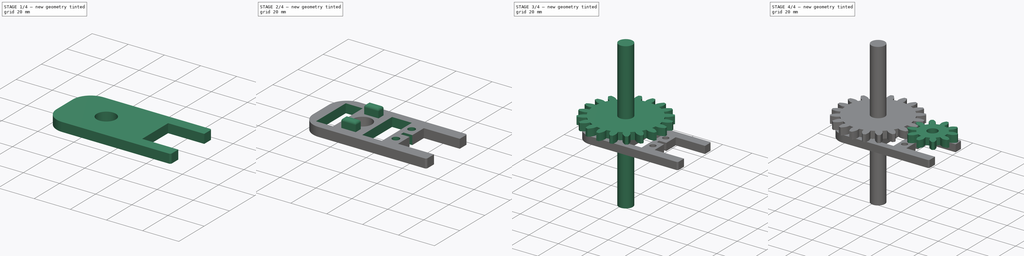
[diagram: build sequence overview — one tinted view per stage of 4, left to right]
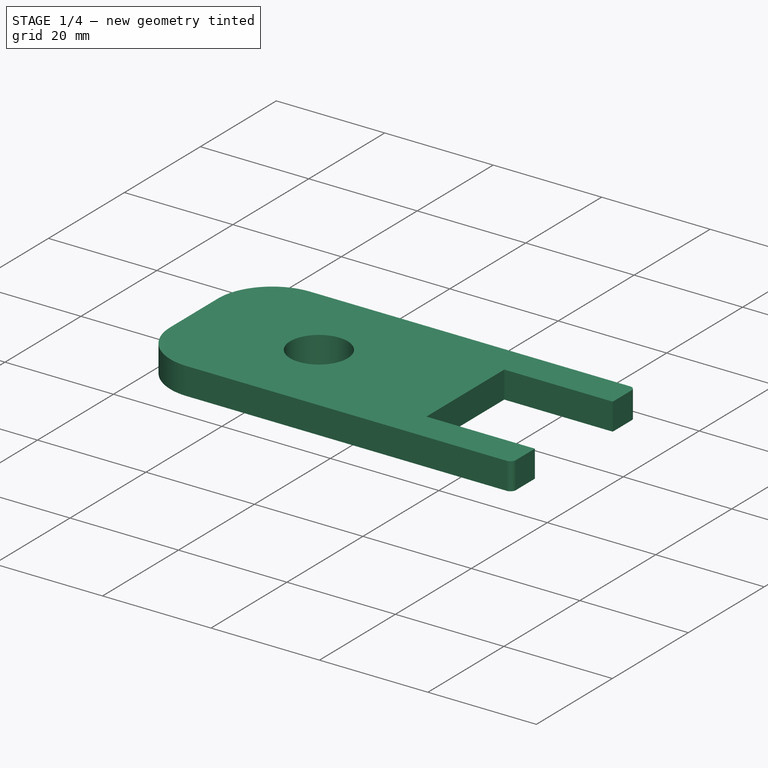
[diagram: stage 1 of 4 — iso view after this stage's code; geometry added in this stage tinted green]
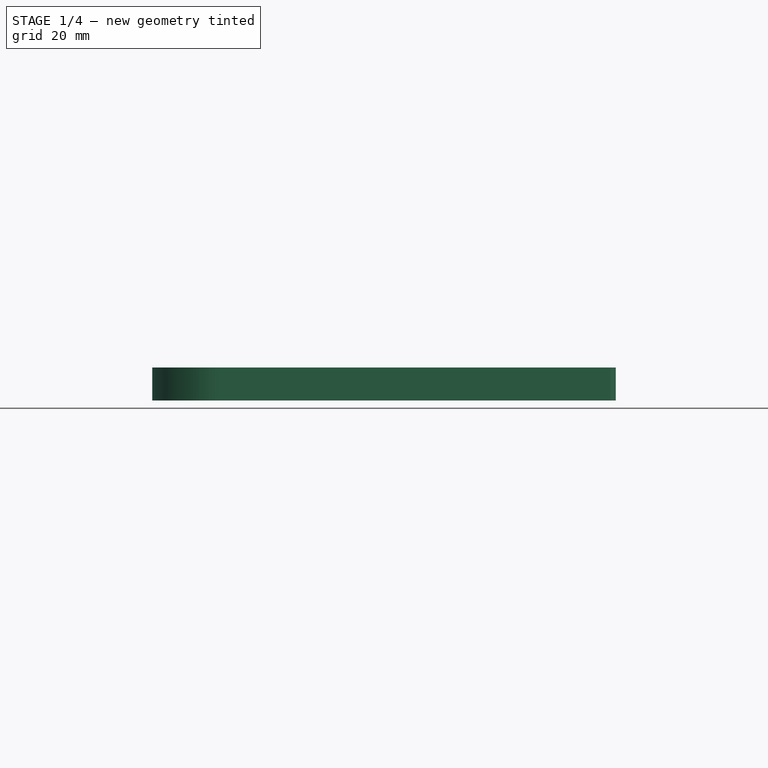
[diagram: stage 1 of 4 — front view after this stage's code; geometry added in this stage tinted green]
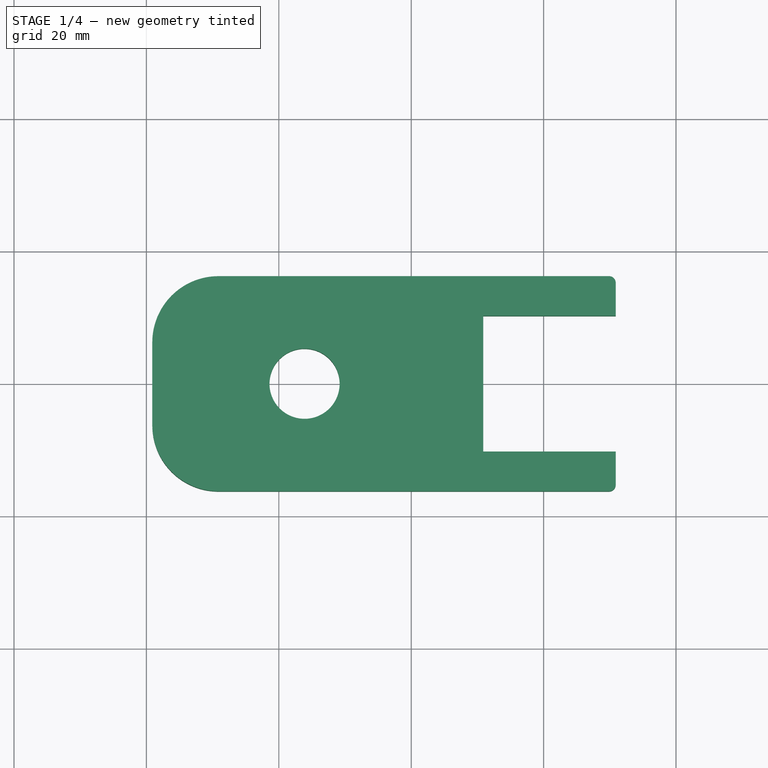
[diagram: stage 1 of 4 — top view after this stage's code; geometry added in this stage tinted green]
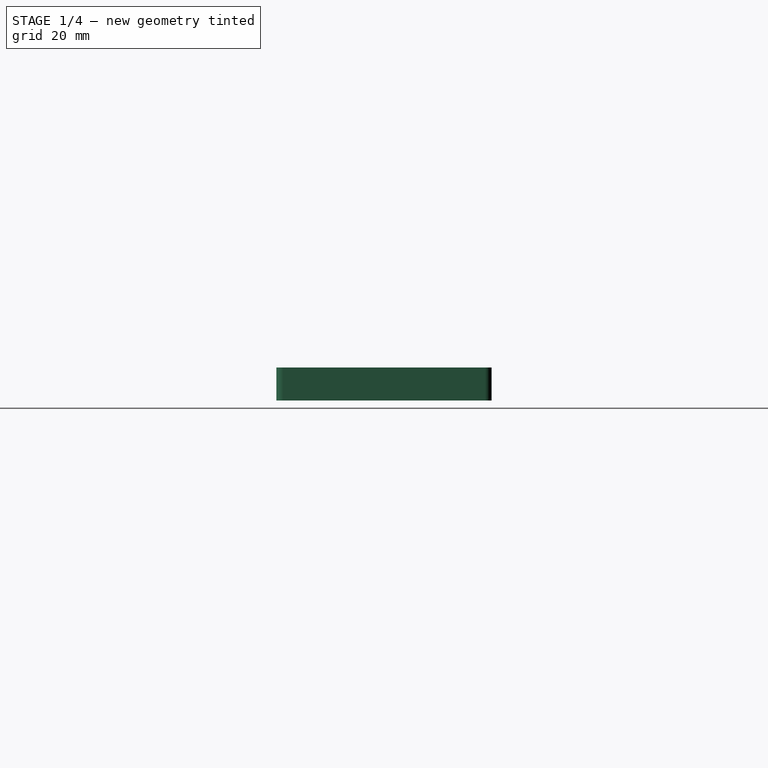
[diagram: stage 1 of 4 — right view after this stage's code; geometry added in this stage tinted green]
FCSTD DOCUMENT  (FreeCAD 0.17R13509 (Git))
Label: Gear_engranaje_ruedas
License: CreativeCommons Attribution-ShareAlike
LicenseURL: http://creativecommons.org/licenses/by-sa/4.0/
objects: Part::Cylinder×3, Sketcher::SketchObject×3, PartDesign::Fillet×3, Part::FeaturePython×2, Part::Cut×2, PartDesign::Pad×2, PartDesign::Pocket×1, PartDesign::Body×1
note: 20 computed .brp shape members not serialized (recipe doc carries the construction recipe); baked Part::Feature solids carry a one-line shape summary decoded from their .brp

FEATURE [Sketcher::SketchObject] Sketch
  MapMode = 5
  Support = -> [XY_Plane]
  sketch-geometry (9):
    g0: LineSegment StartX=30.888 StartY=10.25 StartZ=0 EndX=30.888 EndY=16.25 EndZ=0
    g1: LineSegment StartX=30.888 StartY=16.25 StartZ=0 EndX=-39.112 EndY=16.25 EndZ=0
    g2: LineSegment StartX=-39.112 StartY=16.25 StartZ=0 EndX=-39.112 EndY=-16.25 EndZ=0
    g3: LineSegment StartX=-39.112 StartY=-16.25 StartZ=0 EndX=30.888 EndY=-16.25 EndZ=0
    g4: LineSegment StartX=30.888 StartY=-16.25 StartZ=0 EndX=30.888 EndY=-10.25 EndZ=0
    g5: LineSegment StartX=30.888 StartY=-10.25 StartZ=0 EndX=10.888 EndY=-10.25 EndZ=0
    g6: LineSegment StartX=10.888 StartY=-10.25 StartZ=0 EndX=10.888 EndY=10.25 EndZ=0
    g7: LineSegment StartX=10.888 StartY=10.25 StartZ=0 EndX=30.888 EndY=10.25 EndZ=0
    g8: Circle CenterX=-16.112 CenterY=0 CenterZ=0 NormalX=0 NormalY=0 NormalZ=1 AngleXU=0 Radius=5.3
  constraints (26):
    c: Horizontal(g1)
    c: Coincident(g1,g2)
    c: Vertical(g2)
    c: Coincident(g2,g3)
    c: Horizontal(g3)
    c: Coincident(g3,g4)
    c: Vertical(g4)
    c: Coincident(g4,g5)
    c: Horizontal(g5)
    c: Coincident(g5,g6)
    c: Vertical(g6)
    c: Coincident(g6,g7)
    c: Coincident(g7,g0)
    c: Vertical(g0)
    c: Horizontal(g7)
    c: Equal(g7,g5)
    c: Coincident(g0,g1)
    c: Equal(g0,g4)
    c: DistanceY(g6,g6) = 20.5
    c: DistanceY(g0,g0) = 6
    c: DistanceX(g5,g5) = 20
    c: DistanceX(g1,g1) = 70
    c: DistanceX(g8,g6) = 27
    c: Radius(g8) = 5.3
    c: PointOnObject(g8,g-1)
    c: Symmetric(g1,g2,g-1)
FEATURE [PartDesign::Pad] Pad
  Length = 5
  Length2 = 100
  Profile = -> Sketch
  Refine = true
  Type = 0
FEATURE [PartDesign::Fillet] Fillet
  Base = -> Pad [Edge8,Edge5]
  BaseFeature = -> Pad
  Radius = 10
FEATURE [PartDesign::Fillet] Fillet001
  Base = -> Fillet [Edge31,Edge3]
  BaseFeature = -> Fillet
  Radius = 1
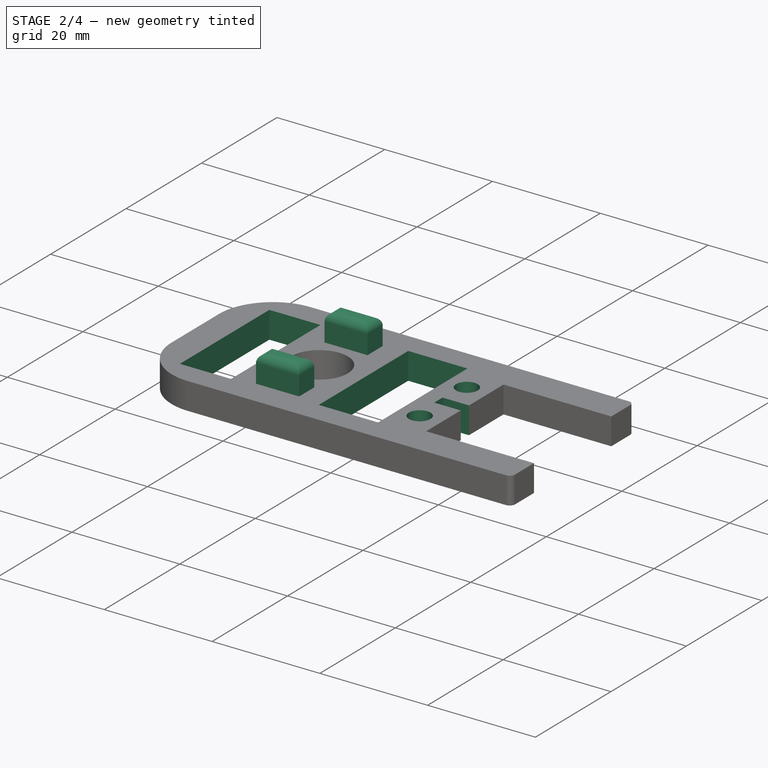
[diagram: stage 2 of 4 — iso view after this stage's code; geometry added in this stage tinted green]
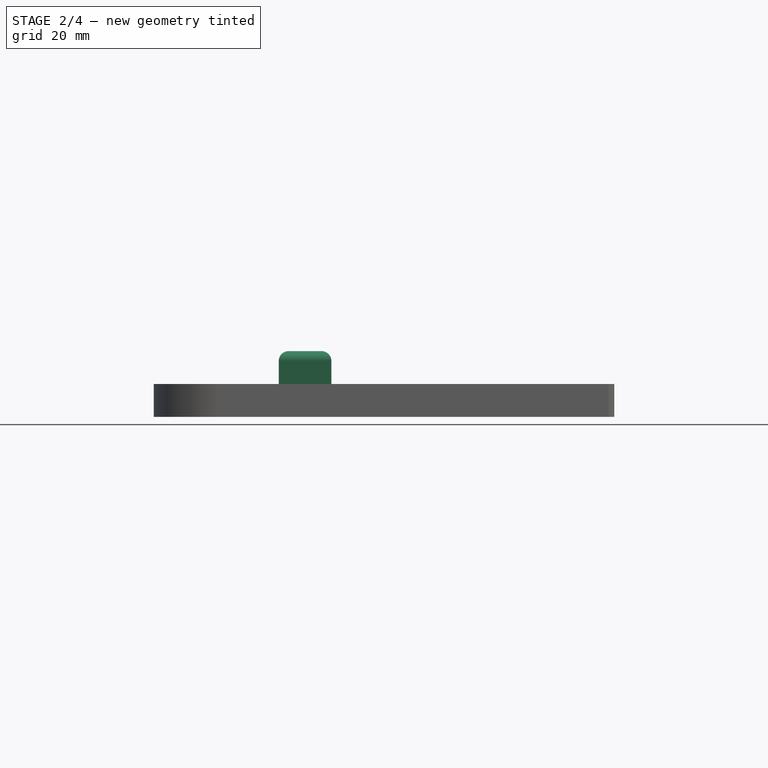
[diagram: stage 2 of 4 — front view after this stage's code; geometry added in this stage tinted green]
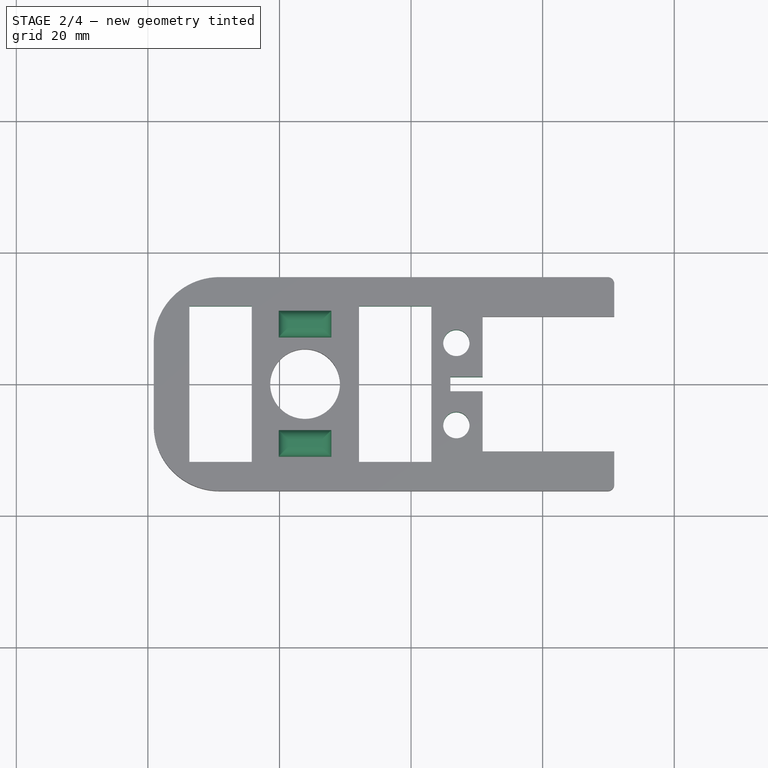
[diagram: stage 2 of 4 — top view after this stage's code; geometry added in this stage tinted green]
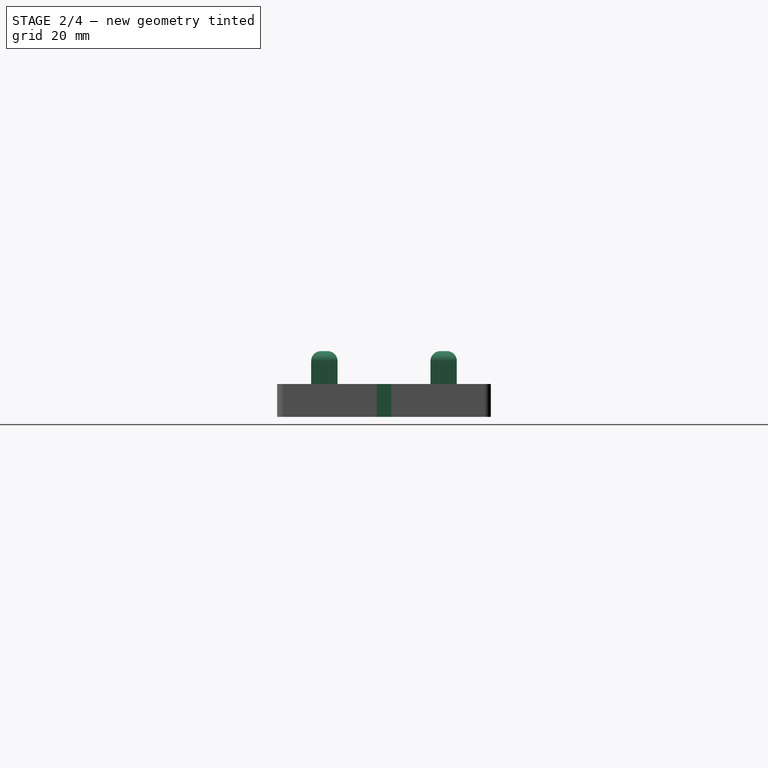
[diagram: stage 2 of 4 — right view after this stage's code; geometry added in this stage tinted green]
FEATURE [Sketcher::SketchObject] Sketch001
  ExternalGeometry = -> [Fillet001]
  MapMode = 5
  Placement = pos=(0,0,5) rot=(0,0,1;0rad)
  Support = -> [Fillet001]
  sketch-geometry (14):
    g0: LineSegment StartX=-33.6862 StartY=11.844 StartZ=0 EndX=-24.211 EndY=11.844 EndZ=0
    g1: LineSegment StartX=-24.211 StartY=11.844 StartZ=0 EndX=-24.211 EndY=-11.844 EndZ=0
    g2: LineSegment StartX=-24.211 StartY=-11.844 StartZ=0 EndX=-33.6862 EndY=-11.844 EndZ=0
    g3: LineSegment StartX=-33.6862 StartY=-11.844 StartZ=0 EndX=-33.6862 EndY=11.844 EndZ=0
    g4: LineSegment StartX=-7.92049 StartY=11.844 StartZ=0 EndX=3.07951 EndY=11.844 EndZ=0
    g5: LineSegment StartX=3.07951 StartY=11.844 StartZ=0 EndX=3.07951 EndY=-11.844 EndZ=0
    g6: LineSegment StartX=3.07951 StartY=-11.844 StartZ=0 EndX=-7.92049 EndY=-11.844 EndZ=0
    g7: LineSegment StartX=-7.92049 StartY=-11.844 StartZ=0 EndX=-7.92049 EndY=11.844 EndZ=0
    g8: Circle CenterX=6.88799 CenterY=6.25 CenterZ=0 NormalX=0 NormalY=0 NormalZ=1 AngleXU=0 Radius=2
    g9: Circle CenterX=6.88799 CenterY=-6.25 CenterZ=0 NormalX=0 NormalY=0 NormalZ=1 AngleXU=0 Radius=2
    g10: LineSegment StartX=10.888 StartY=1.1 StartZ=0 EndX=5.98468 EndY=1.1 EndZ=0
    g11: LineSegment StartX=5.98468 StartY=1.1 StartZ=0 EndX=5.98468 EndY=-1.1 EndZ=0
    g12: LineSegment StartX=5.98468 StartY=-1.1 StartZ=0 EndX=10.888 EndY=-1.1 EndZ=0
    g13: LineSegment StartX=10.888 StartY=-1.1 StartZ=0 EndX=10.888 EndY=1.1 EndZ=0
  constraints (36):
    c: Coincident(g0,g1)
    c: Coincident(g1,g2)
    c: Coincident(g2,g3)
    c: Coincident(g3,g0)
    c: Horizontal(g0)
    c: Horizontal(g2)
    c: Vertical(g1)
    c: Vertical(g3)
    c: Symmetric(g0,g2,g-1)
    c: Coincident(g4,g5)
    c: Coincident(g5,g6)
    c: Coincident(g6,g7)
    c: Coincident(g7,g4)
    c: Horizontal(g4)
    c: Horizontal(g6)
    c: Vertical(g5)
    c: Vertical(g7)
    c: Equal(g1,g7)
    c: Symmetric(g4,g6,g-1)
    c: DistanceX(g4,g4) = 11
    c: Equal(g9,g8)
    c: DistanceY(g8,g-3) = 10
    c: Symmetric(g8,g9,g-1)
    c: Radius(g8) = 2
    c: DistanceX(g8,g-5) = 4
    c: Coincident(g10,g11)
    c: Coincident(g11,g12)
    c: Coincident(g12,g13)
    c: Coincident(g13,g10)
    c: Horizontal(g10)
    c: Horizontal(g12)
    c: Vertical(g11)
    c: Vertical(g13)
    c: PointOnObject(g10,g-5)
    c: Symmetric(g10,g11,g-1)
    c: DistanceY(g12,g10) = 2.2
FEATURE [PartDesign::Pocket] Pocket
  BaseFeature = -> Fillet001
  Length = 5
  Length2 = 100
  Profile = -> Sketch001
  Refine = true
  Type = 0
FEATURE [Sketcher::SketchObject] Sketch002
  ExternalGeometry = -> [Pocket]
  MapMode = 5
  Placement = pos=(0,0,5) rot=(0,0,1;0rad)
  Support = -> [Pocket]
  sketch-geometry (8):
    g0: LineSegment StartX=-20.112 StartY=11.0671 StartZ=0 EndX=-12.112 EndY=11.0671 EndZ=0
    g1: LineSegment StartX=-12.112 StartY=11.0671 StartZ=0 EndX=-12.112 EndY=7.06714 EndZ=0
    g2: LineSegment StartX=-12.112 StartY=7.06714 StartZ=0 EndX=-20.112 EndY=7.06714 EndZ=0
    g3: LineSegment StartX=-20.112 StartY=7.06714 StartZ=0 EndX=-20.112 EndY=11.0671 EndZ=0
    g4: LineSegment StartX=-20.112 StartY=-7.06714 StartZ=0 EndX=-12.112 EndY=-7.06714 EndZ=0
    g5: LineSegment StartX=-12.112 StartY=-7.06714 StartZ=0 EndX=-12.112 EndY=-11.0671 EndZ=0
    g6: LineSegment StartX=-12.112 StartY=-11.0671 StartZ=0 EndX=-20.112 EndY=-11.0671 EndZ=0
    g7: LineSegment StartX=-20.112 StartY=-11.0671 StartZ=0 EndX=-20.112 EndY=-7.06714 EndZ=0
  constraints (22):
    c: Coincident(g0,g1)
    c: Coincident(g1,g2)
    c: Coincident(g2,g3)
    c: Coincident(g3,g0)
    c: Horizontal(g0)
    c: Horizontal(g2)
    c: Vertical(g1)
    c: Vertical(g3)
    c: Coincident(g4,g5)
    c: Coincident(g5,g6)
    c: Coincident(g6,g7)
    c: Coincident(g7,g4)
    c: Horizontal(g4)
    c: Horizontal(g6)
    c: Vertical(g5)
    c: Vertical(g7)
    c: Symmetric(g2,g4,g-1)
    c: Equal(g2,g4)
    c: Equal(g1,g5)
    c: Symmetric(g5,g0,g-3)
    c: DistanceY(g1,g1) = 4
    c: DistanceX(g0,g0) = 8
FEATURE [PartDesign::Pad] Pad001
  BaseFeature = -> Pocket
  Length = 5
  Length2 = 100
  Profile = -> Sketch002
  Refine = true
  Type = 0
FEATURE [PartDesign::Fillet] Fillet002
  Base = -> Pad001 [Face39,Face38]
  BaseFeature = -> Pad001
  Radius = 1.5
FEATURE [PartDesign::Body] Body
  Group = -> [Sketch,Pad,Fillet,Fillet001,Sketch001,Pocket,Sketch002,Pad001,Fillet002]
  Origin = -> Origin
  Tip = -> Fillet002
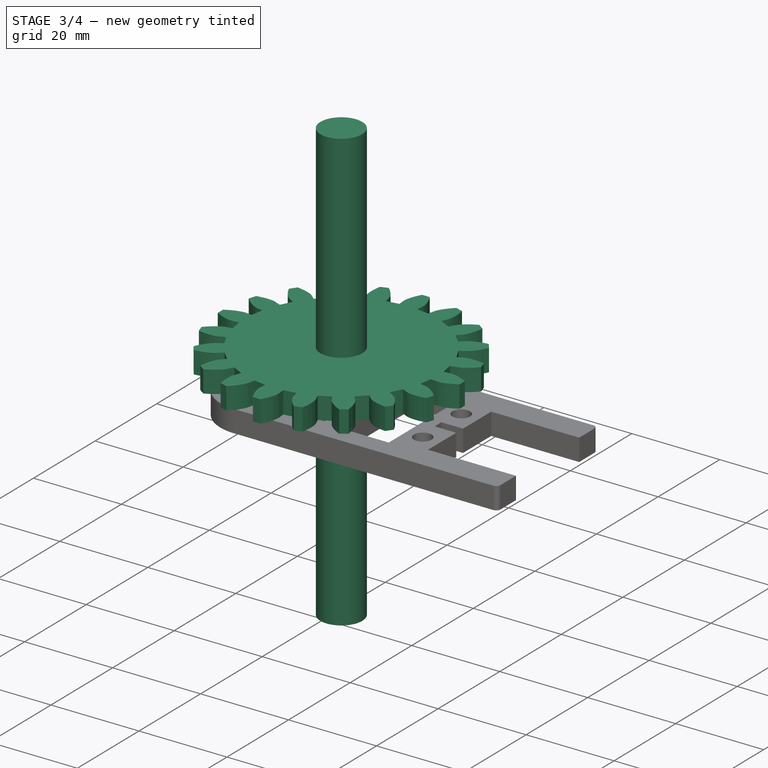
[diagram: stage 3 of 4 — iso view after this stage's code; geometry added in this stage tinted green]
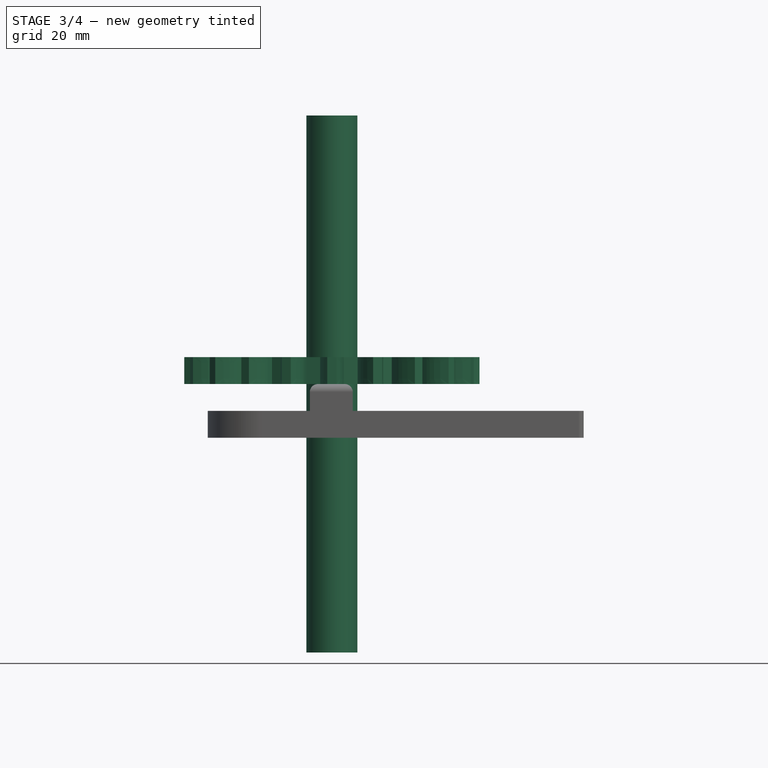
[diagram: stage 3 of 4 — front view after this stage's code; geometry added in this stage tinted green]
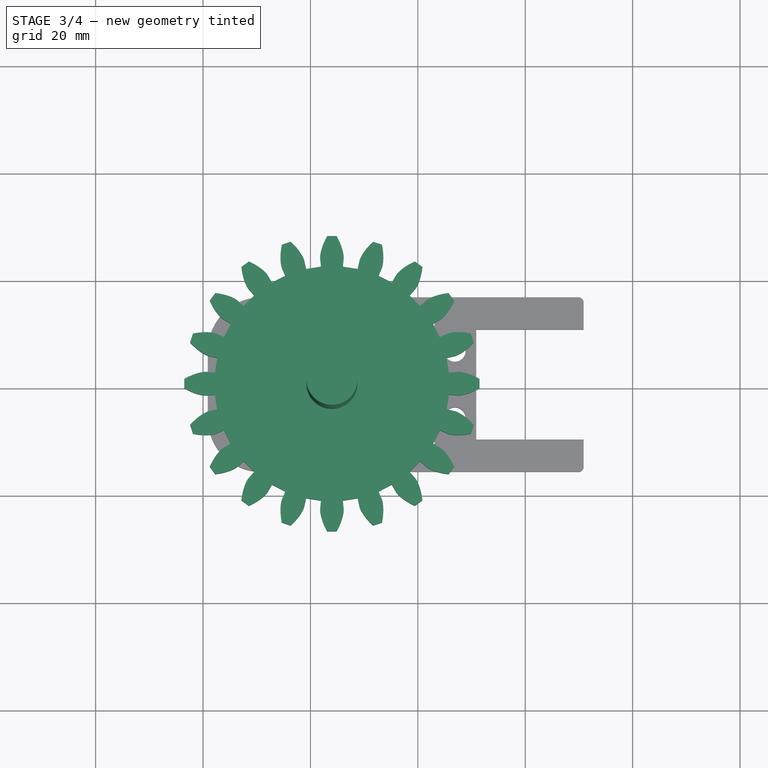
[diagram: stage 3 of 4 — top view after this stage's code; geometry added in this stage tinted green]
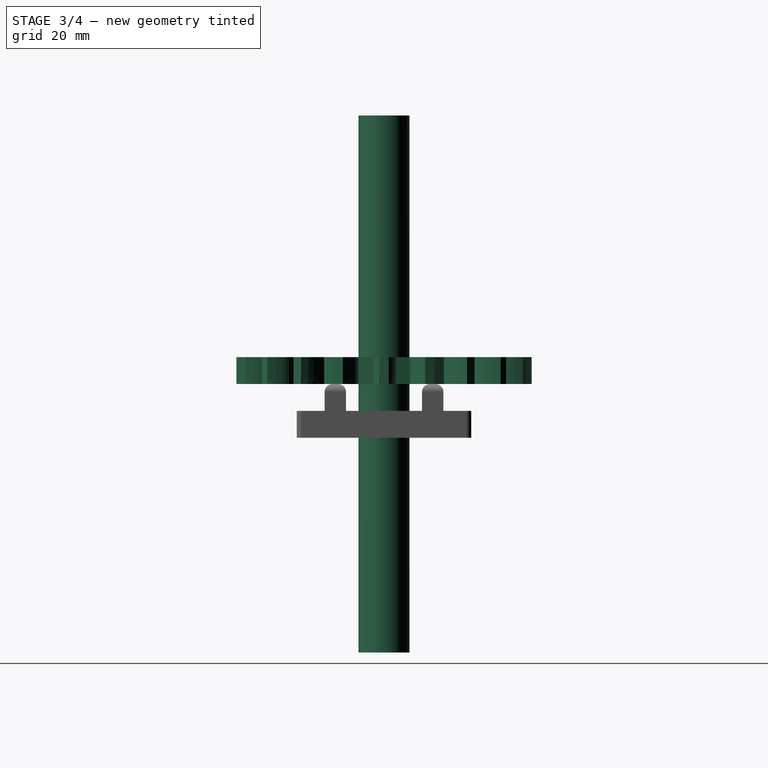
[diagram: stage 3 of 4 — right view after this stage's code; geometry added in this stage tinted green]
FEATURE [Part::FeaturePython] InvoluteGear001  # WARN: FeaturePython — macro-defined, semantics opaque (R4)
  Placement = pos=(0,50,0) rot=(0,0,1;0rad)
  backlash = 0
  beta = 0
  clearance = 0.25
  double_helix = false
  head = 0
  height = 5
  module = 2.5
  numpoints = 6
  pressure_angle = 20
  reversed_backlash = false
  shift = 0
  simple = false
  teeth = 20
  undercut = false
FEATURE [Part::Cylinder] Cylinder001  label="Cilindro001"
  Angle = 360
  AttacherType = Attacher::AttachEngine3D
  Height = 10
  Placement = pos=(0,50,-3) rot=(0,0,1;0rad)
  Radius = 4.75
FEATURE [Part::Cut] Cut001  label="Gear_big"
  Base = -> InvoluteGear001
  Placement = pos=(-16,-50,10) rot=(0,0,1;0rad)
  Refine = true
  Tool = -> Cylinder001
FEATURE [Part::Cylinder] Cylinder002  label="Eje"
  Angle = 360
  AttacherType = Attacher::AttachEngine3D
  Height = 100
  Placement = pos=(-16,0,-40) rot=(0,0,1;0rad)
  Radius = 4.75
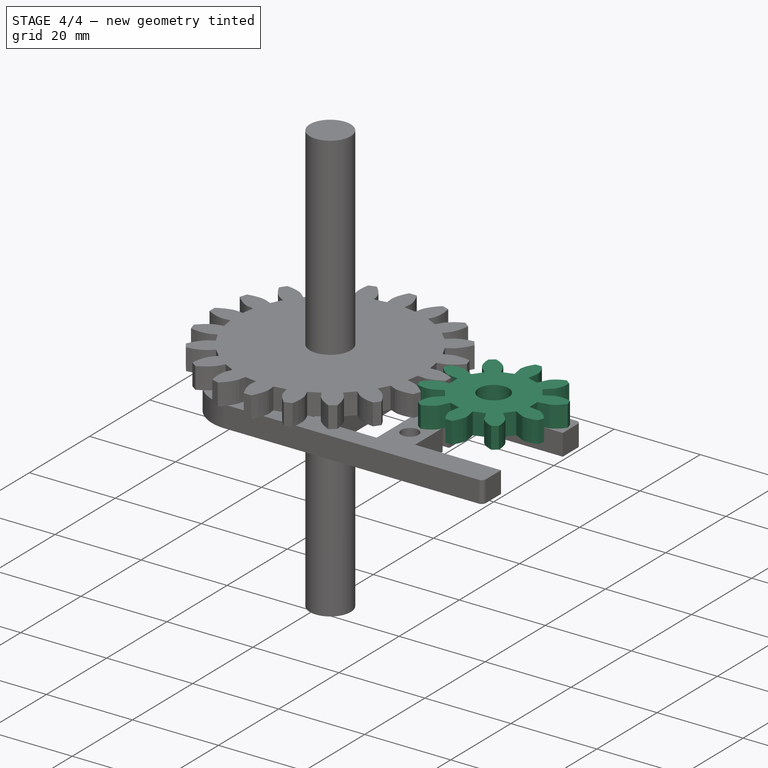
[diagram: stage 4 of 4 — iso view after this stage's code; geometry added in this stage tinted green]
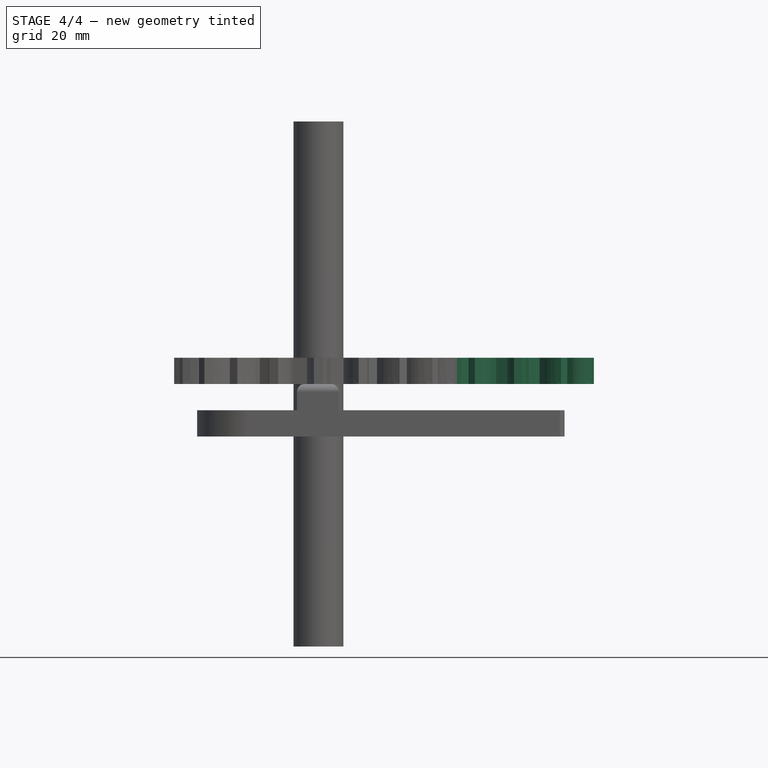
[diagram: stage 4 of 4 — front view after this stage's code; geometry added in this stage tinted green]
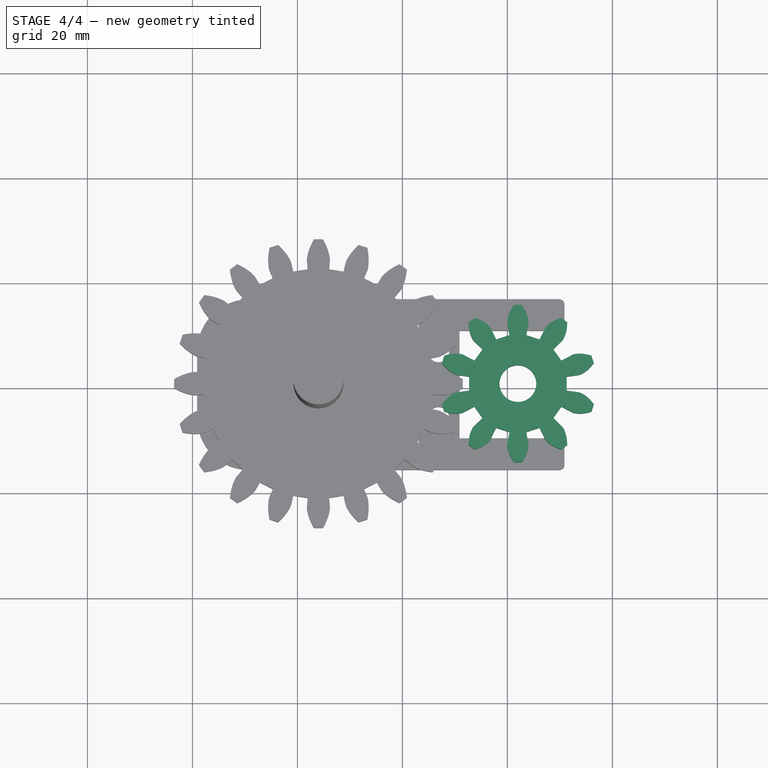
[diagram: stage 4 of 4 — top view after this stage's code; geometry added in this stage tinted green]
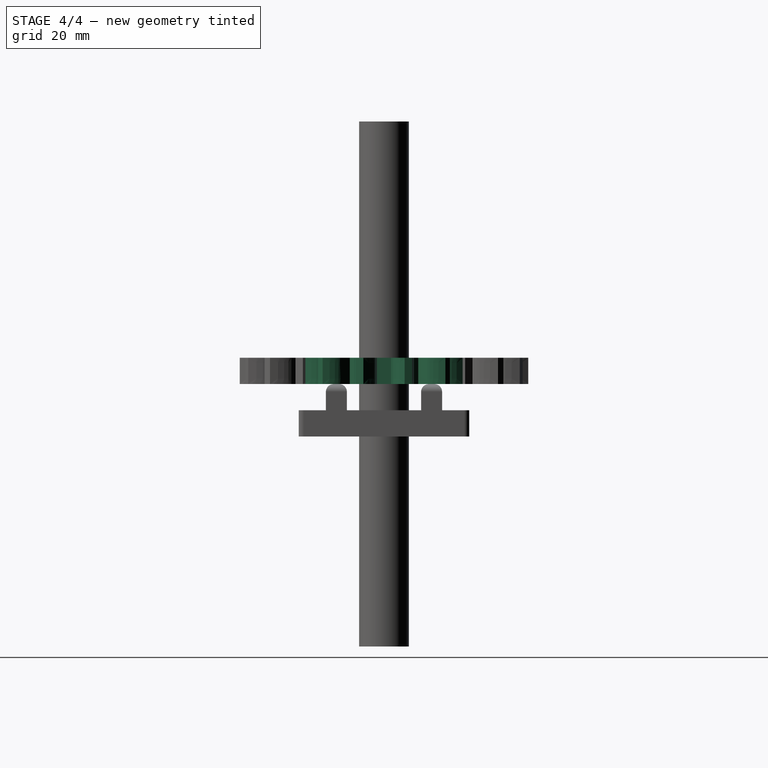
[diagram: stage 4 of 4 — right view after this stage's code; geometry added in this stage tinted green]
FEATURE [Part::FeaturePython] InvoluteGear  # WARN: FeaturePython — macro-defined, semantics opaque (R4)
  backlash = 0
  beta = 0
  clearance = 0.25
  double_helix = false
  head = 0
  height = 5
  module = 2.5
  numpoints = 6
  pressure_angle = 20
  reversed_backlash = false
  shift = 0
  simple = false
  teeth = 10
  undercut = false
FEATURE [Part::Cylinder] Cylinder  label="Cilindro"
  Angle = 360
  AttacherType = Attacher::AttachEngine3D
  Height = 10
  Placement = pos=(0,0,-3) rot=(0,0,1;0rad)
  Radius = 3.5
FEATURE [Part::Cut] Cut  label="Gear_small"
  Base = -> InvoluteGear
  Placement = pos=(22,0,10) rot=(0,0,1;5.96903rad)
  Refine = true
  Tool = -> Cylinder
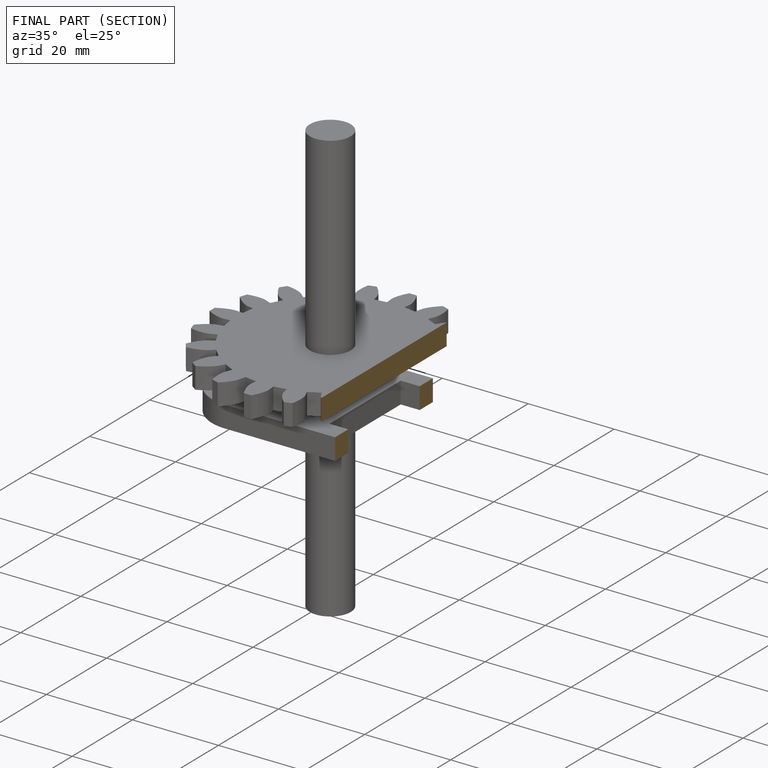
[diagram: finished part — half-section view (interior)]
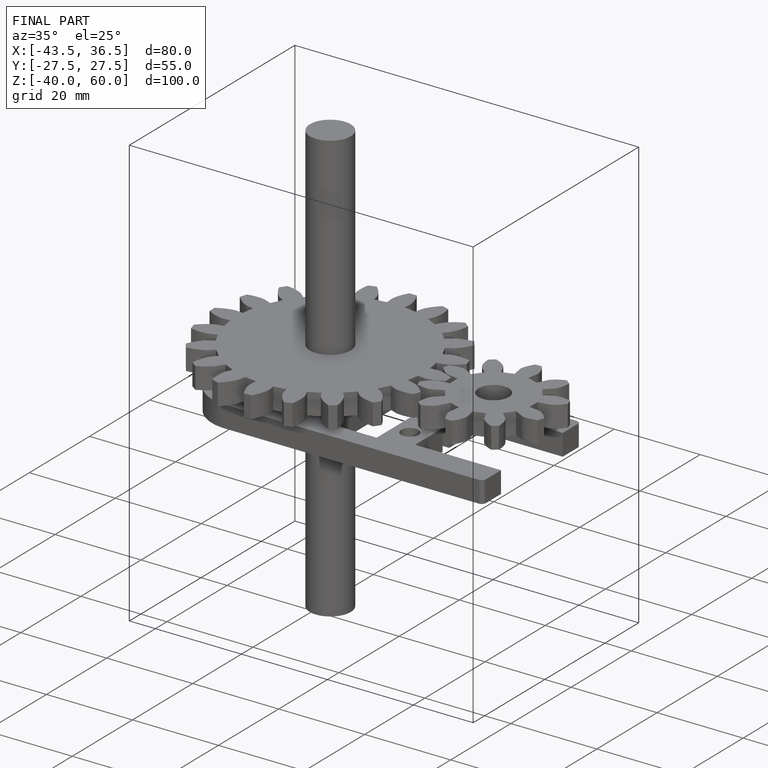
[diagram: finished part — iso view with bounding-box wireframe]
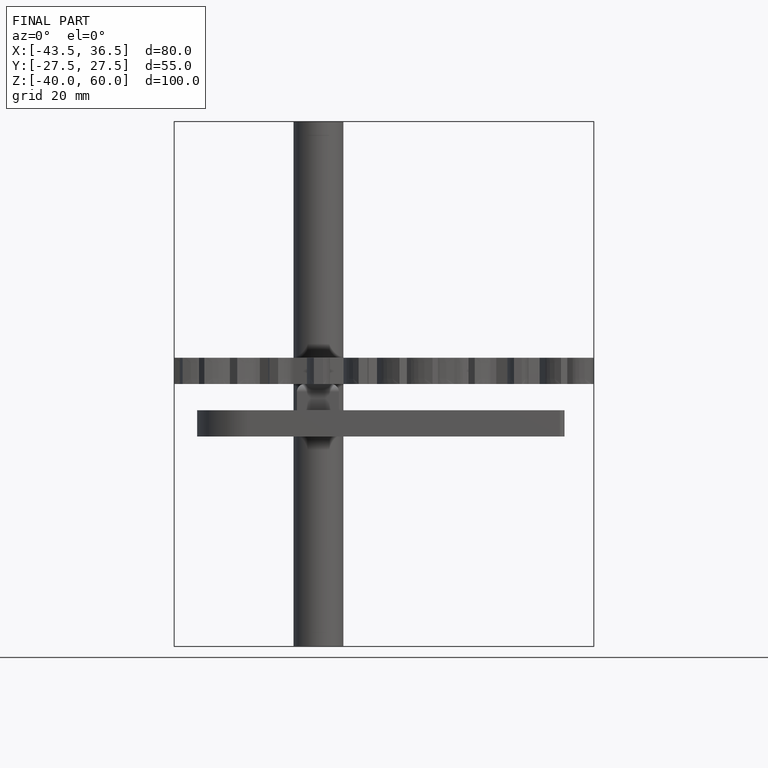
[diagram: finished part — front view with bounding-box wireframe]
